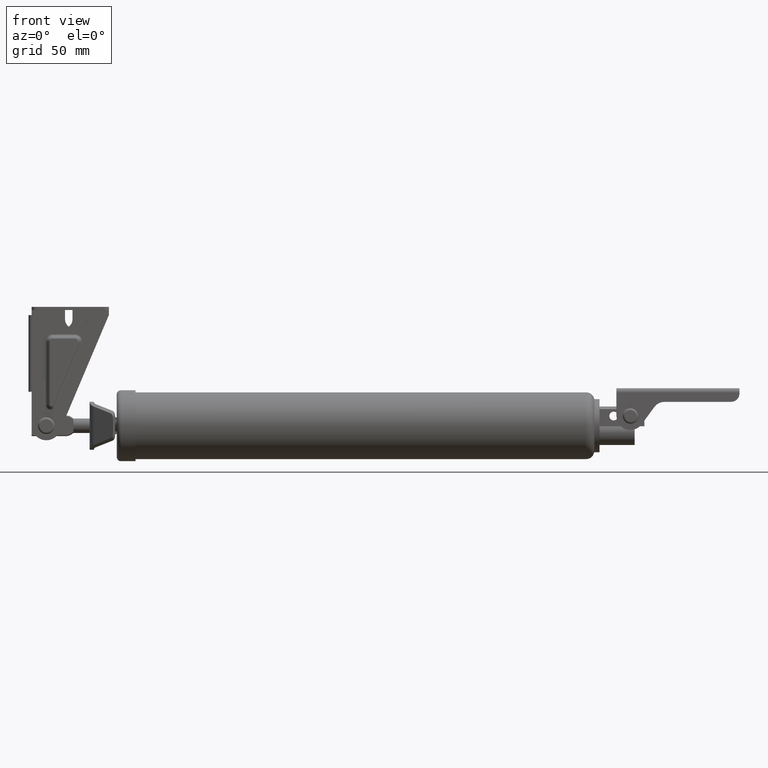
[diagram: clean part render]
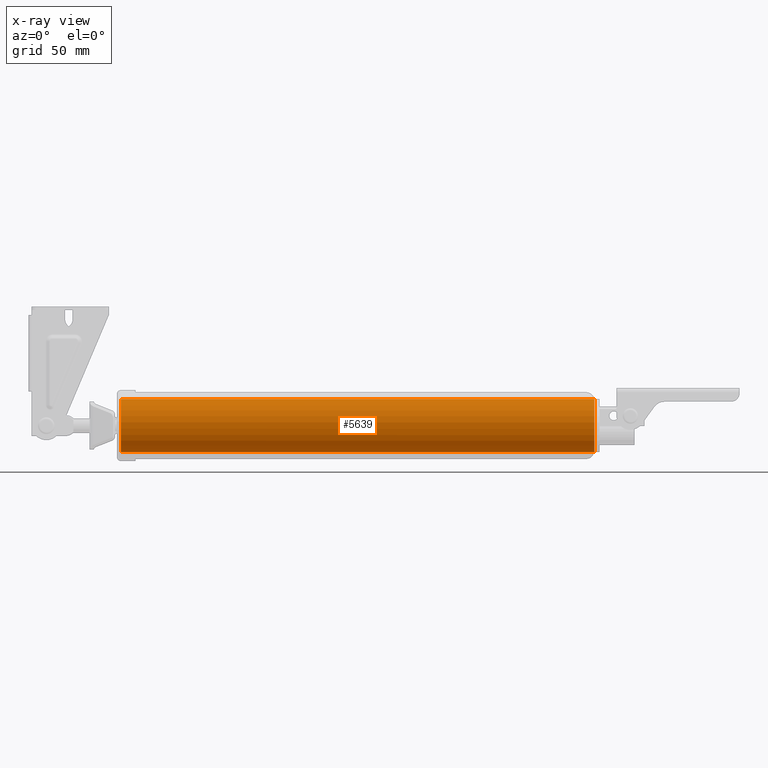
[diagram: x-ray — body ghosted, one internal face saturated and labeled with its STEP entity id]
A machine part, front view, then the same camera in x-ray: the body is ghosted and one INTERNAL B-rep face — a face not visible from any outside direction — is saturated and labeled: STEP entity #5639.
In plain terms, the highlighted cylindrical surface (bore or boss wall) has radius 12.75 mm, axis along (1, 0, 0).
Its self-contained STEP definition (entity closure, byte-faithful):
#1429=FACE_BOUND('',#1879,.T.);
#1518=FACE_OUTER_BOUND('',#1878,.T.);
#1878=EDGE_LOOP('',(#3907));
#1879=EDGE_LOOP('',(#3908));
#2305=CIRCLE('',#6008,12.7500000000001);
#2308=CIRCLE('',#6014,12.75);
#2528=VERTEX_POINT('',#8232);
#2531=VERTEX_POINT('',#8241);
#3074=EDGE_CURVE('',#2528,#2528,#2305,.T.);
#3077=EDGE_CURVE('',#2531,#2531,#2308,.T.);
#3907=ORIENTED_EDGE('',*,*,#3077,.T.);
#3908=ORIENTED_EDGE('',*,*,#3074,.F.);
#5533=CYLINDRICAL_SURFACE('',#6013,12.75);
#5639=ADVANCED_FACE('',(#1518,#1429),#5533,.F.);
#6008=AXIS2_PLACEMENT_3D('',#8233,#6604,#6605);
#6013=AXIS2_PLACEMENT_3D('',#8240,#6614,#6615);
#6014=AXIS2_PLACEMENT_3D('',#8242,#6616,#6617);
#6604=DIRECTION('center_axis',(0.,-1.,0.));
#6605=DIRECTION('ref_axis',(-2.78644210101998E-15,0.,1.));
#6614=DIRECTION('center_axis',(0.,1.,0.));
#6615=DIRECTION('ref_axis',(-6.15722532817166E-17,0.,1.));
#6616=DIRECTION('center_axis',(0.,-1.,-1.39322105051E-15));
#6617=DIRECTION('ref_axis',(1.,-1.90300479959234E-31,1.36590299069608E-16));
#8232=CARTESIAN_POINT('',(-9.88809735360157E-15,114.,-12.7500000000002));
#8233=CARTESIAN_POINT('Origin',(2.66453525910038E-14,114.,-7.68641914149852E-14));
#8240=CARTESIAN_POINT('Origin',(7.85046229341887E-16,0.500000000000007,
-6.66133814775094E-15));
#8241=CARTESIAN_POINT('',(-10.3762819596512,-113.,-7.40913440921519));
#8242=CARTESIAN_POINT('Origin',(2.22044604925031E-15,-113.,-1.7415263131375E-15));